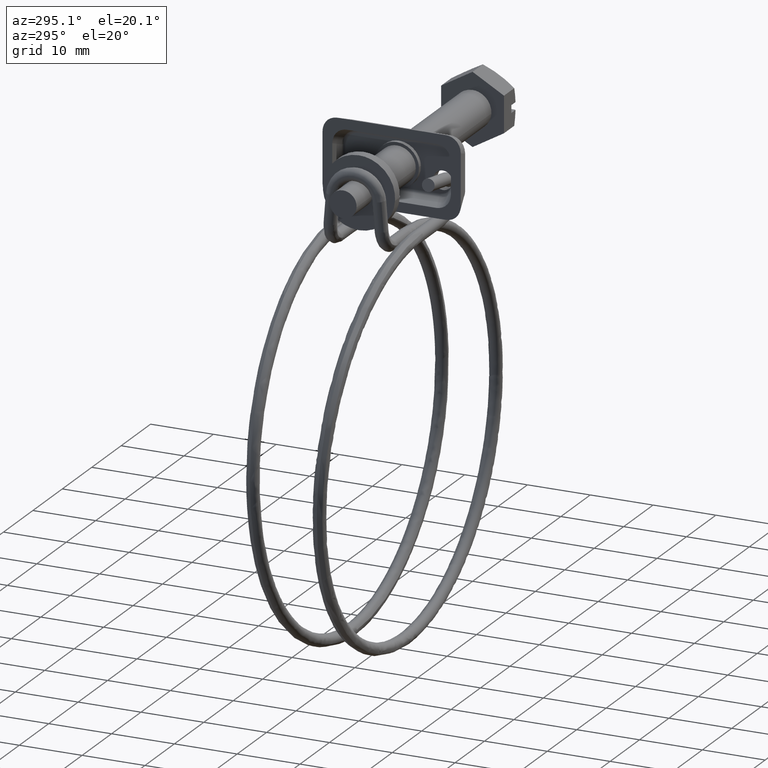
[diagram: clean part render]
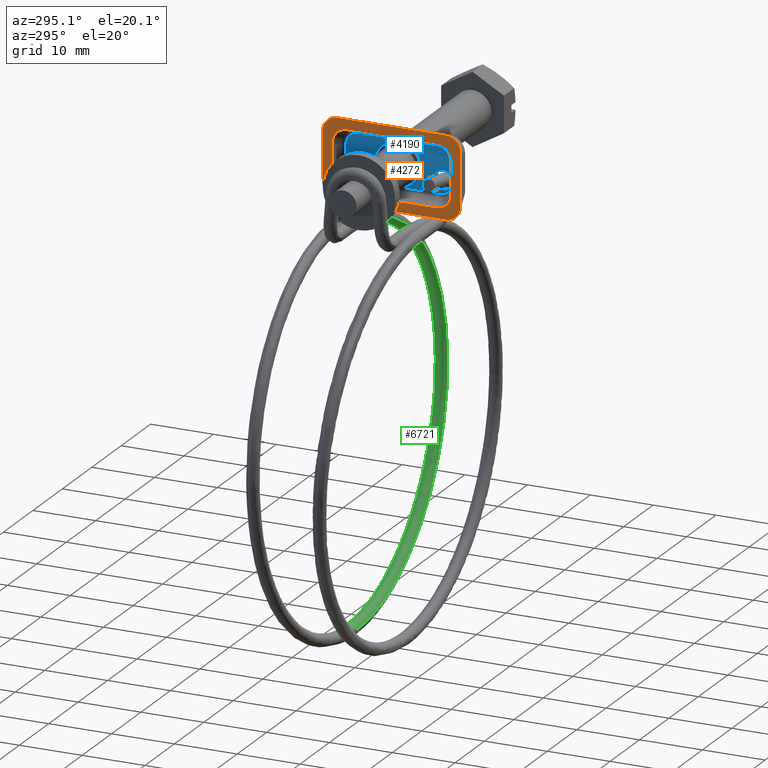
[diagram: same view with three faces highlighted in distinct colors, each labeled with its STEP entity id]
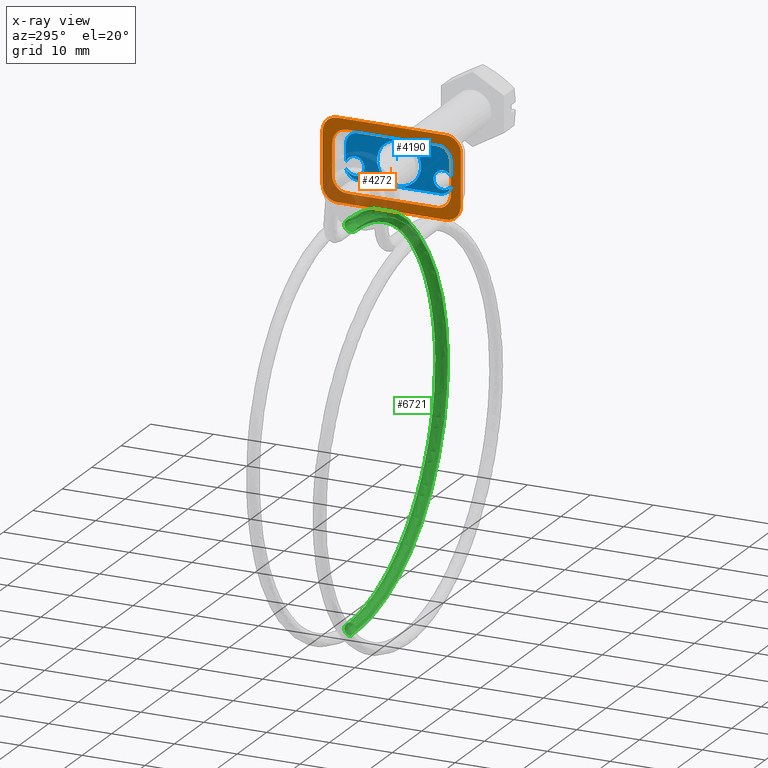
[diagram: x-ray of the same camera — body ghosted, the three highlighted faces saturated]
A machine part, auxiliary view with three faces highlighted in distinct colors.
The next image is the same camera in x-ray (body ghosted, the three faces saturated) — at least one of them is partly hidden behind the body in this view.
Their STEP definitions:

[orange] entity #4272 — the highlighted face is a freeform B-spline surface patch.
#3765=CARTESIAN_POINT('',(-38.700000000000003,-9.453835362344231,-2.455375465696455));
#3766=VERTEX_POINT('',#3765);
#3774=CARTESIAN_POINT('',(-38.700000000000003,-7.096346438622450,-4.897999379502131));
#3775=VERTEX_POINT('',#3774);
#3781=CARTESIAN_POINT('',(-38.700000000000003,-9.453835362344169,-2.455375465696495));
#3782=CARTESIAN_POINT('',(-38.699999999999996,-9.453835362344108,-4.897999379502226));
#3783=CARTESIAN_POINT('',(-38.700000000000003,-7.096346438622450,-4.897999379502131));
#3791=(BOUNDED_CURVE()B_SPLINE_CURVE(2,(#3781,#3782,#3783),.UNSPECIFIED.,.F.,.U.)CURVE()GEOMETRIC_REPRESENTATION_ITEM()QUASI_UNIFORM_CURVE()RATIONAL_B_SPLINE_CURVE((1.0,0.736600277350803,1.0))REPRESENTATION_ITEM(''));
#3792=EDGE_CURVE('',#3766,#3775,#3791,.T.);
#3811=CARTESIAN_POINT('',(-38.700000000000003,7.096346438622000,-4.897999379502131));
#3812=VERTEX_POINT('',#3811);
#3820=CARTESIAN_POINT('',(-38.700000000000003,9.453835362344339,-2.455375465696360));
#3821=VERTEX_POINT('',#3820);
#3827=CARTESIAN_POINT('',(-38.700000000000003,7.096346438622005,-4.897999379502140));
#3828=CARTESIAN_POINT('',(-38.699999999999989,9.453835362344405,-4.897999379502303));
#3829=CARTESIAN_POINT('',(-38.700000000000003,9.453835362344339,-2.455375465696360));
#3837=(BOUNDED_CURVE()B_SPLINE_CURVE(2,(#3827,#3828,#3829),.UNSPECIFIED.,.F.,.U.)CURVE()GEOMETRIC_REPRESENTATION_ITEM()QUASI_UNIFORM_CURVE()RATIONAL_B_SPLINE_CURVE((1.0,0.736600277350721,1.0))REPRESENTATION_ITEM(''));
#3838=EDGE_CURVE('',#3812,#3821,#3837,.T.);
#3857=CARTESIAN_POINT('',(-38.700000000000003,9.453835362344339,2.455374465696385));
#3858=VERTEX_POINT('',#3857);
#3865=CARTESIAN_POINT('',(-38.700000000000003,7.096346438622230,4.897998379502161));
#3866=VERTEX_POINT('',#3865);
#3872=CARTESIAN_POINT('',(-38.700000000000003,9.453835362344339,2.455374465696385));
#3873=CARTESIAN_POINT('',(-38.699999999999989,9.453835362344014,4.897998379502210));
#3874=CARTESIAN_POINT('',(-38.700000000000003,7.096346438622204,4.897998379502179));
#3882=(BOUNDED_CURVE()B_SPLINE_CURVE(2,(#3872,#3873,#3874),.UNSPECIFIED.,.F.,.U.)CURVE()GEOMETRIC_REPRESENTATION_ITEM()QUASI_UNIFORM_CURVE()RATIONAL_B_SPLINE_CURVE((1.0,0.736600277350804,1.0))REPRESENTATION_ITEM(''));
#3883=EDGE_CURVE('',#3858,#3866,#3882,.T.);
#3902=CARTESIAN_POINT('',(-38.700000000000003,-7.096346438622230,4.897998379502161));
#3903=VERTEX_POINT('',#3902);
#3910=CARTESIAN_POINT('',(-38.700000000000003,-9.453835362344231,2.455374465696380));
#3911=VERTEX_POINT('',#3910);
#3917=CARTESIAN_POINT('',(-38.700000000000003,-7.096346438622241,4.897998379502179));
#3918=CARTESIAN_POINT('',(-38.700000000000003,-9.453835362344249,4.897998379502205));
#3919=CARTESIAN_POINT('',(-38.700000000000003,-9.453835362344169,2.455374465696290));
#3927=(BOUNDED_CURVE()B_SPLINE_CURVE(2,(#3917,#3918,#3919),.UNSPECIFIED.,.F.,.U.)CURVE()GEOMETRIC_REPRESENTATION_ITEM()QUASI_UNIFORM_CURVE()RATIONAL_B_SPLINE_CURVE((1.0,0.736600277350776,1.0))REPRESENTATION_ITEM(''));
#3928=EDGE_CURVE('',#3903,#3911,#3927,.T.);
#3947=CARTESIAN_POINT('',(-38.700000000000003,-11.0,4.057375086194185));
#3948=VERTEX_POINT('',#3947);
#3955=CARTESIAN_POINT('',(-38.700000000000003,-8.642511158470031,6.500000000000110));
#3956=VERTEX_POINT('',#3955);
#3962=CARTESIAN_POINT('',(-38.700000000000003,-11.0,4.057375086194185));
#3963=CARTESIAN_POINT('',(-38.700000000000003,-10.999999223404537,6.499998007051939));
#3964=CARTESIAN_POINT('',(-38.700000000000003,-8.642511158470031,6.500000000000110));
#3972=(BOUNDED_CURVE()B_SPLINE_CURVE(2,(#3962,#3963,#3964),.UNSPECIFIED.,.F.,.U.)CURVE()GEOMETRIC_REPRESENTATION_ITEM()QUASI_UNIFORM_CURVE()RATIONAL_B_SPLINE_CURVE((1.0,0.736600485733960,1.0))REPRESENTATION_ITEM(''));
#3973=EDGE_CURVE('',#3948,#3956,#3972,.T.);
#3992=CARTESIAN_POINT('',(-38.700000000000003,-8.642511076278339,-6.500000000000000));
#3993=VERTEX_POINT('',#3992);
#4000=CARTESIAN_POINT('',(-38.700000000000003,-11.0,-4.057376086194156));
#4001=VERTEX_POINT('',#4000);
#4007=CARTESIAN_POINT('',(-38.700000000000003,-8.642511076278327,-6.499999999999980));
#4008=CARTESIAN_POINT('',(-38.699999999999996,-10.999999999999945,-6.499999999999979));
#4009=CARTESIAN_POINT('',(-38.700000000000003,-11.0,-4.057376086194156));
#4017=(BOUNDED_CURVE()B_SPLINE_CURVE(2,(#4007,#4008,#4009),.UNSPECIFIED.,.F.,.U.)CURVE()GEOMETRIC_REPRESENTATION_ITEM()QUASI_UNIFORM_CURVE()RATIONAL_B_SPLINE_CURVE((1.0,0.736600277350831,1.0))REPRESENTATION_ITEM(''));
#4018=EDGE_CURVE('',#3993,#4001,#4017,.T.);
#4037=CARTESIAN_POINT('',(-38.700000000000003,11.000000000000121,-4.057376086194106));
#4038=VERTEX_POINT('',#4037);
#4045=CARTESIAN_POINT('',(-38.700000000000003,8.642511076278229,-6.500000000000000));
#4046=VERTEX_POINT('',#4045);
#4052=CARTESIAN_POINT('',(-38.700000000000003,11.000000000000121,-4.057376086194105));
#4053=CARTESIAN_POINT('',(-38.699999999999996,11.000000000000103,-6.499999999999749));
#4054=CARTESIAN_POINT('',(-38.700000000000003,8.642511076278229,-6.500000000000000));
#4062=(BOUNDED_CURVE()B_SPLINE_CURVE(2,(#4052,#4053,#4054),.UNSPECIFIED.,.F.,.U.)CURVE()GEOMETRIC_REPRESENTATION_ITEM()QUASI_UNIFORM_CURVE()RATIONAL_B_SPLINE_CURVE((1.0,0.736600277350816,1.0))REPRESENTATION_ITEM(''));
#4063=EDGE_CURVE('',#4038,#4046,#4062,.T.);
#4082=CARTESIAN_POINT('',(-38.700000000000003,8.642511158470031,6.500000000000110));
#4083=VERTEX_POINT('',#4082);
#4090=CARTESIAN_POINT('',(-38.700000000000003,11.000000000000121,4.057375086194250));
#4091=VERTEX_POINT('',#4090);
#4097=CARTESIAN_POINT('',(-38.700000000000003,8.642511158470031,6.500000000000110));
#4098=CARTESIAN_POINT('',(-38.699999999999996,11.000000345154032,6.500000075788750));
#4099=CARTESIAN_POINT('',(-38.700000000000003,11.000000000000121,4.057375086194250));
#4107=(BOUNDED_CURVE()B_SPLINE_CURVE(2,(#4097,#4098,#4099),.UNSPECIFIED.,.F.,.U.)CURVE()GEOMETRIC_REPRESENTATION_ITEM()QUASI_UNIFORM_CURVE()RATIONAL_B_SPLINE_CURVE((1.0,0.736600200372209,1.0))REPRESENTATION_ITEM(''));
#4108=EDGE_CURVE('',#4083,#4091,#4107,.T.);
#4122=CARTESIAN_POINT('',(-38.700000000000003,9.453835362344339,-2.455375465696360));
#4123=CARTESIAN_POINT('',(-38.700000000000003,9.453835362344339,2.455374465696385));
#4124=QUASI_UNIFORM_CURVE('',1,(#4122,#4123),.UNSPECIFIED.,.F.,.U.);
#4125=EDGE_CURVE('',#3821,#3858,#4124,.T.);
#4139=CARTESIAN_POINT('',(-38.700000000000003,-9.453835362344231,-2.455375465696455));
#4140=CARTESIAN_POINT('',(-38.700000000000003,-9.453835362344231,2.455374465696380));
#4141=QUASI_UNIFORM_CURVE('',1,(#4139,#4140),.UNSPECIFIED.,.F.,.U.);
#4142=EDGE_CURVE('',#3766,#3911,#4141,.T.);
#4155=CARTESIAN_POINT('',(-38.700000000000003,-7.096346438622450,-4.897999379502131));
#4156=CARTESIAN_POINT('',(-38.700000000000003,7.096346438622000,-4.897999379502131));
#4157=QUASI_UNIFORM_CURVE('',1,(#4155,#4156),.UNSPECIFIED.,.F.,.U.);
#4158=EDGE_CURVE('',#3775,#3812,#4157,.T.);
#4199=CARTESIAN_POINT('',(-38.700000000000003,-7.096346438622230,4.897998379502161));
#4200=CARTESIAN_POINT('',(-38.700000000000003,7.096346438622230,4.897998379502161));
#4201=QUASI_UNIFORM_CURVE('',1,(#4199,#4200),.UNSPECIFIED.,.F.,.U.);
#4202=EDGE_CURVE('',#3903,#3866,#4201,.T.);
#4215=CARTESIAN_POINT('',(-38.700000000000003,11.000000000000121,-4.057376086194106));
#4216=CARTESIAN_POINT('',(-38.700000000000003,11.000000000000121,4.057375086194250));
#4217=QUASI_UNIFORM_CURVE('',1,(#4215,#4216),.UNSPECIFIED.,.F.,.U.);
#4218=EDGE_CURVE('',#4038,#4091,#4217,.T.);
#4231=CARTESIAN_POINT('',(-38.700000000000003,-11.0,-4.057376086194156));
#4232=CARTESIAN_POINT('',(-38.700000000000003,-11.0,4.057375086194185));
#4233=QUASI_UNIFORM_CURVE('',1,(#4231,#4232),.UNSPECIFIED.,.F.,.U.);
#4234=EDGE_CURVE('',#4001,#3948,#4233,.T.);
#4239=CARTESIAN_POINT('',(-38.700000000000003,-12.098899957359739,-7.149349974803484));
#4240=CARTESIAN_POINT('',(-38.700000000000003,-12.098899957359739,7.149350323490763));
#4241=CARTESIAN_POINT('',(-38.700000000000003,12.098900547445840,-7.149349974803484));
#4242=CARTESIAN_POINT('',(-38.700000000000003,12.098900547445840,7.149350323490763));
#4243=B_SPLINE_SURFACE_WITH_KNOTS('',1,1,((#4239,#4241),(#4240,#4242)),.UNSPECIFIED.,.F.,.F.,.U.,(2,2),(2,2),(0.0,14.298700298294250),(0.0,24.197800504805581),.UNSPECIFIED.);
#4244=CARTESIAN_POINT('',(-38.700000000000003,-8.642511158470031,6.500000000000110));
#4245=CARTESIAN_POINT('',(-38.700000000000003,8.642511158470031,6.500000000000110));
#4246=QUASI_UNIFORM_CURVE('',1,(#4244,#4245),.UNSPECIFIED.,.F.,.U.);
#4247=EDGE_CURVE('',#3956,#4083,#4246,.T.);
#4248=ORIENTED_EDGE('',*,*,#4247,.T.);
#4249=ORIENTED_EDGE('',*,*,#4108,.T.);
#4250=ORIENTED_EDGE('',*,*,#4218,.F.);
#4251=ORIENTED_EDGE('',*,*,#4063,.T.);
#4252=CARTESIAN_POINT('',(-38.700000000000003,-8.642511076278339,-6.500000000000000));
#4253=CARTESIAN_POINT('',(-38.700000000000003,8.642511076278229,-6.500000000000000));
#4254=QUASI_UNIFORM_CURVE('',1,(#4252,#4253),.UNSPECIFIED.,.F.,.U.);
#4255=EDGE_CURVE('',#3993,#4046,#4254,.T.);
#4256=ORIENTED_EDGE('',*,*,#4255,.F.);
#4257=ORIENTED_EDGE('',*,*,#4018,.T.);
#4258=ORIENTED_EDGE('',*,*,#4234,.T.);
#4259=ORIENTED_EDGE('',*,*,#3973,.T.);
#4260=EDGE_LOOP('',(#4248,#4249,#4250,#4251,#4256,#4257,#4258,#4259));
#4261=FACE_OUTER_BOUND('',#4260,.T.);
#4262=ORIENTED_EDGE('',*,*,#4142,.F.);
#4263=ORIENTED_EDGE('',*,*,#3792,.T.);
#4264=ORIENTED_EDGE('',*,*,#4158,.T.);
#4265=ORIENTED_EDGE('',*,*,#3838,.T.);
#4266=ORIENTED_EDGE('',*,*,#4125,.T.);
#4267=ORIENTED_EDGE('',*,*,#3883,.T.);
#4268=ORIENTED_EDGE('',*,*,#4202,.F.);
#4269=ORIENTED_EDGE('',*,*,#3928,.T.);
#4270=EDGE_LOOP('',(#4262,#4263,#4264,#4265,#4266,#4267,#4268,#4269));
#4271=FACE_BOUND('',#4270,.T.);
#4272=ADVANCED_FACE('',(#4261,#4271),#4243,.T.);

[blue] entity #4190 — the highlighted face is a freeform B-spline surface patch.
#1883=CARTESIAN_POINT('',(-36.200000000000003,-5.728324125054815,-0.704487291690259));
#1884=VERTEX_POINT('',#1883);
#1885=CARTESIAN_POINT('',(-36.200000000000003,-8.438446995591788,-1.074711579191980));
#1886=VERTEX_POINT('',#1885);
#1887=CARTESIAN_POINT('',(-36.200000000000003,-5.728324125054815,-0.704487291690259));
#1888=CARTESIAN_POINT('',(-36.200000000000003,-6.104555623824321,-0.103058156269385));
#1889=CARTESIAN_POINT('',(-36.200000000000003,-6.808142015089159,-0.012320426427032));
#1890=CARTESIAN_POINT('',(-36.200000000000010,-8.075999828347010,0.151188335490741));
#1891=CARTESIAN_POINT('',(-36.200000000000003,-8.438446995591784,-1.074711579191981));
#1899=(BOUNDED_CURVE()B_SPLINE_CURVE(2,(#1887,#1888,#1889,#1890,#1891),.UNSPECIFIED.,.F.,.U.)B_SPLINE_CURVE_WITH_KNOTS((3,2,3),(0.594758611922672,0.750000000000000,1.0),.UNSPECIFIED.)CURVE()GEOMETRIC_REPRESENTATION_ITEM()RATIONAL_B_SPLINE_CURVE((0.887540518945661,0.851650052205662,1.0,0.761097942965372,1.0))REPRESENTATION_ITEM(''));
#1900=EDGE_CURVE('',#1884,#1886,#1899,.T.);
#1956=CARTESIAN_POINT('',(-36.200000000000003,-5.502797802385093,-1.591572809592920));
#1957=VERTEX_POINT('',#1956);
#1963=CARTESIAN_POINT('',(-36.200000000000003,-8.409378136258292,-2.013471780176190));
#1964=VERTEX_POINT('',#1963);
#1965=CARTESIAN_POINT('',(-36.200000000000003,-8.409378136258290,-2.013471780176189));
#1966=CARTESIAN_POINT('',(-36.200000000000010,-7.971777714804319,-3.214598093686211));
#1967=CARTESIAN_POINT('',(-36.200000000000003,-6.716465370576391,-2.972958965456003));
#1968=CARTESIAN_POINT('',(-36.200000000000010,-5.573834358664778,-2.753010230882745));
#1969=CARTESIAN_POINT('',(-36.200000000000003,-5.502797802385093,-1.591572809592920));
#1977=(BOUNDED_CURVE()B_SPLINE_CURVE(2,(#1965,#1966,#1967,#1968,#1969),.UNSPECIFIED.,.F.,.U.)B_SPLINE_CURVE_WITH_KNOTS((3,2,3),(0.0,0.250000000000000,0.482545984428038),.UNSPECIFIED.)CURVE()GEOMETRIC_REPRESENTATION_ITEM()RATIONAL_B_SPLINE_CURVE((1.0,0.761097942965372,1.0,0.777777143859997,0.968970550467892))REPRESENTATION_ITEM(''));
#1978=EDGE_CURVE('',#1964,#1957,#1977,.T.);
#2025=CARTESIAN_POINT('',(-36.200000000000017,-5.502797802385094,-1.591572809592920));
#2026=CARTESIAN_POINT('',(-36.200000000000010,-5.498580561936741,-1.522621538193900));
#2027=CARTESIAN_POINT('',(-36.200000000000003,-5.500718614089884,-1.453574512785301));
#2028=CARTESIAN_POINT('',(-36.200000000000010,-5.513269056385455,-1.048266014207397));
#2029=CARTESIAN_POINT('',(-36.200000000000010,-5.728324125054815,-0.704487291690258));
#2037=(BOUNDED_CURVE()B_SPLINE_CURVE(2,(#2025,#2026,#2027,#2028,#2029),.UNSPECIFIED.,.F.,.U.)B_SPLINE_CURVE_WITH_KNOTS((3,2,3),(0.482545984428038,0.500000000000000,0.594758611922673),.UNSPECIFIED.)CURVE()GEOMETRIC_REPRESENTATION_ITEM()RATIONAL_B_SPLINE_CURVE((0.968970550467892,0.983320799105376,1.0,0.909447890759710,0.887540518945661))REPRESENTATION_ITEM(''));
#2038=EDGE_CURVE('',#1957,#1884,#2037,.T.);
#2086=CARTESIAN_POINT('',(-36.200000000000003,5.910109958172886,-2.530601618825735));
#2087=VERTEX_POINT('',#2086);
#2088=CARTESIAN_POINT('',(-36.200000000000003,8.409378136258361,-2.013471780175256));
#2089=VERTEX_POINT('',#2088);
#2090=CARTESIAN_POINT('',(-36.200000000000003,5.910109958172886,-2.530601618825735));
#2091=CARTESIAN_POINT('',(-36.200000000000003,6.242049675784870,-2.881637155840248));
#2092=CARTESIAN_POINT('',(-36.200000000000003,6.716465370576574,-2.972958965456092));
#2093=CARTESIAN_POINT('',(-36.200000000000010,7.971777714805023,-3.214598093685992));
#2094=CARTESIAN_POINT('',(-36.200000000000003,8.409378136258351,-2.013471780175252));
#2102=(BOUNDED_CURVE()B_SPLINE_CURVE(2,(#2090,#2091,#2092,#2093,#2094),.UNSPECIFIED.,.F.,.U.)B_SPLINE_CURVE_WITH_KNOTS((3,2,3),(0.639026038671926,0.750000000000000,1.0),.UNSPECIFIED.)CURVE()GEOMETRIC_REPRESENTATION_ITEM()RATIONAL_B_SPLINE_CURVE((0.882052944107953,0.893952369445717,1.0,0.761097942965258,1.0))REPRESENTATION_ITEM(''));
#2103=EDGE_CURVE('',#2087,#2089,#2102,.T.);
#2159=CARTESIAN_POINT('',(-36.200000000000003,5.502797802372852,-1.408427190602418));
#2160=VERTEX_POINT('',#2159);
#2166=CARTESIAN_POINT('',(-36.200000000000003,8.438446995591820,-1.074711579193044));
#2167=VERTEX_POINT('',#2166);
#2168=CARTESIAN_POINT('',(-36.200000000000003,8.438446995591820,-1.074711579193044));
#2169=CARTESIAN_POINT('',(-36.200000000000010,8.075999828347822,0.151188335490383));
#2170=CARTESIAN_POINT('',(-36.200000000000003,6.808142015089454,-0.012320426426957));
#2171=CARTESIAN_POINT('',(-36.200000000000003,5.578488070884625,-0.170902242069981));
#2172=CARTESIAN_POINT('',(-36.200000000000010,5.502797802372853,-1.408427190602418));
#2180=(BOUNDED_CURVE()B_SPLINE_CURVE(2,(#2168,#2169,#2170,#2171,#2172),.UNSPECIFIED.,.F.,.U.)B_SPLINE_CURVE_WITH_KNOTS((3,2,3),(0.0,0.250000000000000,0.494224959489201),.UNSPECIFIED.)CURVE()GEOMETRIC_REPRESENTATION_ITEM()RATIONAL_B_SPLINE_CURVE((1.0,0.761097942965258,1.0,0.766616619195214,0.989217612170441))REPRESENTATION_ITEM(''));
#2181=EDGE_CURVE('',#2167,#2160,#2180,.T.);
#2228=CARTESIAN_POINT('',(-36.200000000000003,5.502797802372852,-1.408427190602418));
#2229=CARTESIAN_POINT('',(-36.200000000000010,5.501418096124052,-1.430985188322690));
#2230=CARTESIAN_POINT('',(-36.200000000000003,5.500718614089606,-1.453574512785245));
#2231=CARTESIAN_POINT('',(-36.200000000000003,5.481406834419241,-2.077236072969079));
#2232=CARTESIAN_POINT('',(-36.200000000000003,5.910109958172886,-2.530601618825735));
#2240=(BOUNDED_CURVE()B_SPLINE_CURVE(2,(#2228,#2229,#2230,#2231,#2232),.UNSPECIFIED.,.F.,.U.)B_SPLINE_CURVE_WITH_KNOTS((3,2,3),(0.494224959489201,0.500000000000000,0.639026038671925),.UNSPECIFIED.)CURVE()GEOMETRIC_REPRESENTATION_ITEM()RATIONAL_B_SPLINE_CURVE((0.989217612170441,0.994481323770045,1.0,0.867145573519543,0.882052944107953))REPRESENTATION_ITEM(''));
#2241=EDGE_CURVE('',#2160,#2087,#2240,.T.);
#2319=CARTESIAN_POINT('',(-36.200000000000003,-3.493471794465061,0.213669888559573));
#2320=VERTEX_POINT('',#2319);
#2326=CARTESIAN_POINT('',(-36.200000000000003,0.0,3.500000000000000));
#2327=VERTEX_POINT('',#2326);
#2328=CARTESIAN_POINT('',(-36.200000000000003,0.0,3.500000000000000));
#2329=CARTESIAN_POINT('',(-36.200000000000003,-3.292471233815716,3.500000000000000));
#2330=CARTESIAN_POINT('',(-36.200000000000003,-3.493471794465061,0.213669888559573));
#2338=(BOUNDED_CURVE()B_SPLINE_CURVE(2,(#2328,#2329,#2330),.UNSPECIFIED.,.F.,.U.)B_SPLINE_CURVE_WITH_KNOTS((3,3),(0.500000000000000,0.739332962223440),.UNSPECIFIED.)CURVE()GEOMETRIC_REPRESENTATION_ITEM()RATIONAL_B_SPLINE_CURVE((1.0,0.719603993304873,0.976072041633491))REPRESENTATION_ITEM(''));
#2339=EDGE_CURVE('',#2327,#2320,#2338,.T.);
#2341=CARTESIAN_POINT('',(-36.200000000000003,3.475533342268366,-0.413119821336227));
#2342=VERTEX_POINT('',#2341);
#2343=CARTESIAN_POINT('',(-36.200000000000003,3.475533342268367,-0.413119821336228));
#2344=CARTESIAN_POINT('',(-36.200000000000003,3.500000000000000,-0.207284418819656));
#2345=CARTESIAN_POINT('',(-36.200000000000003,3.500000000000000,0.0));
#2346=CARTESIAN_POINT('',(-36.200000000000003,3.500000000000000,3.500000000000000));
#2347=CARTESIAN_POINT('',(-36.200000000000003,0.0,3.500000000000000));
#2355=(BOUNDED_CURVE()B_SPLINE_CURVE(2,(#2343,#2344,#2345,#2346,#2347),.UNSPECIFIED.,.F.,.U.)B_SPLINE_CURVE_WITH_KNOTS((3,2,3),(0.229562473511990,0.250000000000000,0.500000000000000),.UNSPECIFIED.)CURVE()GEOMETRIC_REPRESENTATION_ITEM()RATIONAL_B_SPLINE_CURVE((0.956026754180723,0.976055948329366,1.0,0.707106781186547,1.0))REPRESENTATION_ITEM(''));
#2356=EDGE_CURVE('',#2342,#2327,#2355,.T.);
#2400=CARTESIAN_POINT('',(-36.200000000000003,0.0,-3.500000000000000));
#2401=VERTEX_POINT('',#2400);
#2402=CARTESIAN_POINT('',(-36.200000000000003,0.0,-3.500000000000000));
#2403=CARTESIAN_POINT('',(-36.199999999999996,3.108610840762099,-3.500000000000000));
#2404=CARTESIAN_POINT('',(-36.200000000000003,3.475533342268367,-0.413119821336228));
#2412=(BOUNDED_CURVE()B_SPLINE_CURVE(2,(#2402,#2403,#2404),.UNSPECIFIED.,.F.,.U.)B_SPLINE_CURVE_WITH_KNOTS((3,3),(0.0,0.229562473511990),.UNSPECIFIED.)CURVE()GEOMETRIC_REPRESENTATION_ITEM()RATIONAL_B_SPLINE_CURVE((1.0,0.731050832857181,0.956026754180723))REPRESENTATION_ITEM(''));
#2413=EDGE_CURVE('',#2401,#2342,#2412,.T.);
#2415=CARTESIAN_POINT('',(-36.200000000000003,-3.493471794465061,0.213669888559573));
#2416=CARTESIAN_POINT('',(-36.200000000000003,-3.500000000000000,0.106934671733160));
#2417=CARTESIAN_POINT('',(-36.200000000000003,-3.500000000000000,0.0));
#2418=CARTESIAN_POINT('',(-36.200000000000003,-3.500000000000000,-3.500000000000000));
#2419=CARTESIAN_POINT('',(-36.200000000000003,0.0,-3.500000000000000));
#2427=(BOUNDED_CURVE()B_SPLINE_CURVE(2,(#2415,#2416,#2417,#2418,#2419),.UNSPECIFIED.,.F.,.U.)B_SPLINE_CURVE_WITH_KNOTS((3,2,3),(0.739332962223439,0.750000000000000,1.0),.UNSPECIFIED.)CURVE()GEOMETRIC_REPRESENTATION_ITEM()RATIONAL_B_SPLINE_CURVE((0.976072041633491,0.987502787881674,1.0,0.707106781186547,1.0))REPRESENTATION_ITEM(''));
#2428=EDGE_CURVE('',#2320,#2401,#2427,.T.);
#2487=CARTESIAN_POINT('',(-36.200000000000003,-6.552455856614260,-3.613999483098555));
#2488=VERTEX_POINT('',#2487);
#2532=CARTESIAN_POINT('',(-36.200000000000003,-6.552455856614260,-3.613999483098555));
#2533=CARTESIAN_POINT('',(-36.199999999999996,-8.142356781997027,-3.613999483098620));
#2534=CARTESIAN_POINT('',(-36.200000000000003,-8.409378136258329,-2.013471780176166));
#2542=(BOUNDED_CURVE()B_SPLINE_CURVE(2,(#2532,#2533,#2534),.UNSPECIFIED.,.F.,.U.)CURVE()GEOMETRIC_REPRESENTATION_ITEM()QUASI_UNIFORM_CURVE()RATIONAL_B_SPLINE_CURVE((1.0,0.790787445489052,1.0))REPRESENTATION_ITEM(''));
#2543=EDGE_CURVE('',#2488,#1964,#2542,.T.);
#2637=CARTESIAN_POINT('',(-36.200000000000003,6.552455856614290,-3.613999483098555));
#2638=VERTEX_POINT('',#2637);
#2660=CARTESIAN_POINT('',(-36.200000000000003,6.552455856614290,-3.613999483098555));
#2661=CARTESIAN_POINT('',(-36.200000000000003,-6.552455856614260,-3.613999483098555));
#2662=QUASI_UNIFORM_CURVE('',1,(#2660,#2661),.UNSPECIFIED.,.F.,.U.);
#2663=EDGE_CURVE('',#2638,#2488,#2662,.T.);
#2784=CARTESIAN_POINT('',(-36.200000000000003,8.409378136258361,-2.013471780175256));
#2785=CARTESIAN_POINT('',(-36.199999999999996,8.142356781997565,-3.613999483098475));
#2786=CARTESIAN_POINT('',(-36.200000000000003,6.552455856614280,-3.613999483098562));
#2794=(BOUNDED_CURVE()B_SPLINE_CURVE(2,(#2784,#2785,#2786),.UNSPECIFIED.,.F.,.U.)CURVE()GEOMETRIC_REPRESENTATION_ITEM()QUASI_UNIFORM_CURVE()RATIONAL_B_SPLINE_CURVE((1.0,0.790787445488940,1.0))REPRESENTATION_ITEM(''));
#2795=EDGE_CURVE('',#2089,#2638,#2794,.T.);
#2816=CARTESIAN_POINT('',(-36.200000000000003,-8.438446995591788,1.659899352054025));
#2817=VERTEX_POINT('',#2816);
#2831=CARTESIAN_POINT('',(-36.200000000000003,-8.438446995591788,-1.074711579191980));
#2832=CARTESIAN_POINT('',(-36.200000000000003,-8.438446995591788,1.659899352054025));
#2833=QUASI_UNIFORM_CURVE('',1,(#2831,#2832),.UNSPECIFIED.,.F.,.U.);
#2834=EDGE_CURVE('',#1886,#2817,#2833,.T.);
#2960=CARTESIAN_POINT('',(-36.200000000000003,-6.552455856614260,3.613998483098680));
#2961=VERTEX_POINT('',#2960);
#2975=CARTESIAN_POINT('',(-36.200000000000003,-8.438446995591779,1.659899352054033));
#2976=CARTESIAN_POINT('',(-36.199999999999996,-8.438446995591772,3.613998483098672));
#2977=CARTESIAN_POINT('',(-36.200000000000003,-6.552455856614251,3.613998483098665));
#2985=(BOUNDED_CURVE()B_SPLINE_CURVE(2,(#2975,#2976,#2977),.UNSPECIFIED.,.F.,.U.)CURVE()GEOMETRIC_REPRESENTATION_ITEM()QUASI_UNIFORM_CURVE()RATIONAL_B_SPLINE_CURVE((1.0,0.736600277350791,1.0))REPRESENTATION_ITEM(''));
#2986=EDGE_CURVE('',#2817,#2961,#2985,.T.);
#3070=CARTESIAN_POINT('',(-36.200000000000003,6.552455856614140,3.613998483098650));
#3071=VERTEX_POINT('',#3070);
#3085=CARTESIAN_POINT('',(-36.200000000000003,-6.552455856614260,3.613998483098680));
#3086=CARTESIAN_POINT('',(-36.200000000000003,6.552455856614140,3.613998483098650));
#3087=QUASI_UNIFORM_CURVE('',1,(#3085,#3086),.UNSPECIFIED.,.F.,.U.);
#3088=EDGE_CURVE('',#2961,#3071,#3087,.T.);
#3113=CARTESIAN_POINT('',(-36.200000000000003,8.438446995591759,1.659899352054280));
#3114=VERTEX_POINT('',#3113);
#3136=CARTESIAN_POINT('',(-36.200000000000003,8.438446995591759,1.659899352054280));
#3137=CARTESIAN_POINT('',(-36.200000000000003,8.438446995591820,-1.074711579193044));
#3138=QUASI_UNIFORM_CURVE('',1,(#3136,#3137),.UNSPECIFIED.,.F.,.U.);
#3139=EDGE_CURVE('',#3114,#2167,#3138,.T.);
#3197=CARTESIAN_POINT('',(-36.200000000000003,6.552455856614149,3.613998483098665));
#3198=CARTESIAN_POINT('',(-36.200000000000010,8.438446995591537,3.613998483098739));
#3199=CARTESIAN_POINT('',(-36.200000000000003,8.438446995591747,1.659899352054262));
#3207=(BOUNDED_CURVE()B_SPLINE_CURVE(2,(#3197,#3198,#3199),.UNSPECIFIED.,.F.,.U.)CURVE()GEOMETRIC_REPRESENTATION_ITEM()QUASI_UNIFORM_CURVE()RATIONAL_B_SPLINE_CURVE((1.0,0.736600277350815,1.0))REPRESENTATION_ITEM(''));
#3208=EDGE_CURVE('',#3071,#3114,#3207,.T.);
#4163=CARTESIAN_POINT('',(-36.200000000000003,-9.281447817740716,3.975036873826210));
#4164=CARTESIAN_POINT('',(-36.200000000000003,-9.281447817740716,-3.975037615332734));
#4165=CARTESIAN_POINT('',(-36.200000000000003,9.281448270414316,3.975036873826210));
#4166=CARTESIAN_POINT('',(-36.200000000000003,9.281448270414316,-3.975037615332734));
#4167=B_SPLINE_SURFACE_WITH_KNOTS('',1,1,((#4163,#4165),(#4164,#4166)),.UNSPECIFIED.,.F.,.F.,.U.,(2,2),(2,2),(0.0,7.950074489158943),(0.0,18.562896088155028),.UNSPECIFIED.);
#4168=ORIENTED_EDGE('',*,*,#2663,.T.);
#4169=ORIENTED_EDGE('',*,*,#2543,.T.);
#4170=ORIENTED_EDGE('',*,*,#1978,.T.);
#4171=ORIENTED_EDGE('',*,*,#2038,.T.);
#4172=ORIENTED_EDGE('',*,*,#1900,.T.);
#4173=ORIENTED_EDGE('',*,*,#2834,.T.);
#4174=ORIENTED_EDGE('',*,*,#2986,.T.);
#4175=ORIENTED_EDGE('',*,*,#3088,.T.);
#4176=ORIENTED_EDGE('',*,*,#3208,.T.);
#4177=ORIENTED_EDGE('',*,*,#3139,.T.);
#4178=ORIENTED_EDGE('',*,*,#2181,.T.);
#4179=ORIENTED_EDGE('',*,*,#2241,.T.);
#4180=ORIENTED_EDGE('',*,*,#2103,.T.);
#4181=ORIENTED_EDGE('',*,*,#2795,.T.);
#4182=EDGE_LOOP('',(#4168,#4169,#4170,#4171,#4172,#4173,#4174,#4175,#4176,#4177,#4178,#4179,#4180,#4181));
#4183=FACE_OUTER_BOUND('',#4182,.T.);
#4184=ORIENTED_EDGE('',*,*,#2339,.T.);
#4185=ORIENTED_EDGE('',*,*,#2428,.T.);
#4186=ORIENTED_EDGE('',*,*,#2413,.T.);
#4187=ORIENTED_EDGE('',*,*,#2356,.T.);
#4188=EDGE_LOOP('',(#4184,#4185,#4186,#4187));
#4189=FACE_BOUND('',#4188,.T.);
#4190=ADVANCED_FACE('',(#4183,#4189),#4167,.F.);

[green] entity #6721 — the highlighted face is a freeform B-spline surface patch.
#5510=CARTESIAN_POINT('',(-32.250015575042518,4.949450048326650,-7.089595034402070));
#5511=VERTEX_POINT('',#5510);
#5517=CARTESIAN_POINT('',(-32.249995918368569,4.300002000000000,-8.850001000000392));
#5518=VERTEX_POINT('',#5517);
#5519=CARTESIAN_POINT('',(-32.250015575042518,4.949450048326650,-7.089595034402070));
#5520=CARTESIAN_POINT('',(-32.250012231949263,5.300001999999241,-7.388994685578228));
#5521=CARTESIAN_POINT('',(-32.250007084357740,5.300001999999481,-7.850001000006845));
#5522=CARTESIAN_POINT('',(-32.249995918368576,5.300002000000001,-8.850001000000392));
#5523=CARTESIAN_POINT('',(-32.249995918368569,4.300002000000000,-8.850001000000392));
#5531=(BOUNDED_CURVE()B_SPLINE_CURVE(2,(#5519,#5520,#5521,#5522,#5523),.UNSPECIFIED.,.F.,.U.)B_SPLINE_CURVE_WITH_KNOTS((3,2,3),(0.113143161348309,0.250000000000000,0.500000000000000),.UNSPECIFIED.)CURVE()GEOMETRIC_REPRESENTATION_ITEM()RATIONAL_B_SPLINE_CURVE((0.854871031639391,0.839662240042692,1.0,0.707106781186548,1.0))REPRESENTATION_ITEM(''));
#5532=EDGE_CURVE('',#5511,#5518,#5531,.T.);
#5534=CARTESIAN_POINT('',(-32.249995797983253,3.306690361283858,-7.965465229929489));
#5535=VERTEX_POINT('',#5534);
#5536=CARTESIAN_POINT('',(-32.249995918368569,4.300002000000000,-8.850001000000392));
#5537=CARTESIAN_POINT('',(-32.249995918368562,3.409510300259732,-8.850001000000392));
#5538=CARTESIAN_POINT('',(-32.249995797983246,3.306690361283858,-7.965465229929489));
#5546=(BOUNDED_CURVE()B_SPLINE_CURVE(2,(#5536,#5537,#5538),.UNSPECIFIED.,.F.,.U.)B_SPLINE_CURVE_WITH_KNOTS((3,3),(0.500000000000000,0.729999999794959),.UNSPECIFIED.)CURVE()GEOMETRIC_REPRESENTATION_ITEM()RATIONAL_B_SPLINE_CURVE((1.0,0.730538238931845,0.956886117787089))REPRESENTATION_ITEM(''));
#5547=EDGE_CURVE('',#5518,#5535,#5546,.T.);
#5664=CARTESIAN_POINT('',(-32.250018250346912,4.300001999998960,-6.850001000013299));
#5665=VERTEX_POINT('',#5664);
#5679=CARTESIAN_POINT('',(-32.250018250346912,4.300001999998960,-6.850001000013299));
#5680=CARTESIAN_POINT('',(-32.250018250346912,4.668921477104783,-6.850001000013299));
#5681=CARTESIAN_POINT('',(-32.250015575042525,4.949450048326650,-7.089595034402070));
#5689=(BOUNDED_CURVE()B_SPLINE_CURVE(2,(#5679,#5680,#5681),.UNSPECIFIED.,.F.,.U.)B_SPLINE_CURVE_WITH_KNOTS((3,3),(0.0,0.113143161348309),.UNSPECIFIED.)CURVE()GEOMETRIC_REPRESENTATION_ITEM()RATIONAL_B_SPLINE_CURVE((1.0,0.867444541143856,0.854871031639391))REPRESENTATION_ITEM(''));
#5690=EDGE_CURVE('',#5665,#5511,#5689,.T.);
#6606=CARTESIAN_POINT('',(-36.544026245290105,3.306690361212838,-69.434570448902520));
#6607=CARTESIAN_POINT('',(-1.141452763296385,3.306690361212838,-74.405037008403099));
#6608=CARTESIAN_POINT('',(-1.366073863621801,3.306690361212838,-38.655949015443504));
#6609=CARTESIAN_POINT('',(-1.588401523018653,3.306690361212839,-3.271868679569841));
#6610=CARTESIAN_POINT('',(-36.617571760073048,3.306690361212839,-8.275847427242159));
#6611=CARTESIAN_POINT('',(-36.421044962930189,3.409510299170977,-68.558625739580592));
#6612=CARTESIAN_POINT('',(-2.032404241694895,3.409510299170977,-73.386737707726510));
#6613=CARTESIAN_POINT('',(-2.250592174315898,3.409510299170977,-38.661506681033323));
#6614=CARTESIAN_POINT('',(-2.466552350354518,3.409510299170977,-4.290829460616721));
#6615=CARTESIAN_POINT('',(-36.492484127820731,3.409510299170977,-9.151493824972118));
#6616=CARTESIAN_POINT('',(-36.421044962930203,4.300001999997920,-68.558625739580592));
#6617=CARTESIAN_POINT('',(-2.032404241694894,4.300001999997921,-73.386737707726525));
#6618=CARTESIAN_POINT('',(-2.250592174315898,4.300001999997920,-38.661506681033323));
#6619=CARTESIAN_POINT('',(-2.466552350354518,4.300001999997921,-4.290829460616719));
#6620=CARTESIAN_POINT('',(-36.492484127820731,4.300001999997920,-9.151493824972114));
#6621=CARTESIAN_POINT('',(-36.421044962930189,5.300001999997919,-68.558625739580592));
#6622=CARTESIAN_POINT('',(-2.032404241694895,5.300001999997920,-73.386737707726525));
#6623=CARTESIAN_POINT('',(-2.250592174315898,5.300001999997919,-38.661506681033330));
#6624=CARTESIAN_POINT('',(-2.466552350354517,5.300001999997919,-4.290829460616720));
#6625=CARTESIAN_POINT('',(-36.492484127820731,5.300001999997919,-9.151493824972116));
#6626=CARTESIAN_POINT('',(-36.560079795027882,5.300001999997920,-69.548913230899942));
#6627=CARTESIAN_POINT('',(-1.025151049751393,5.300001999997920,-74.537962264650758));
#6628=CARTESIAN_POINT('',(-1.250611913459760,5.300001999997920,-38.655223537067769));
#6629=CARTESIAN_POINT('',(-1.473770762033001,5.300001999997922,-3.138857075970606));
#6630=CARTESIAN_POINT('',(-36.633900265414745,5.300001999997919,-8.161543585804514));
#6631=CARTESIAN_POINT('',(-36.699114627125546,5.300001999997920,-70.539200722219277));
#6632=CARTESIAN_POINT('',(-0.017897857807888,5.300001999997920,-75.689186821574950));
#6633=CARTESIAN_POINT('',(-0.250631652603623,5.300001999997920,-38.648940393102208));
#6634=CARTESIAN_POINT('',(-0.480989173711485,5.300001999997919,-1.986884691324498));
#6635=CARTESIAN_POINT('',(-36.775316403008780,5.300001999997920,-7.171593346636914));
#6636=CARTESIAN_POINT('',(-36.699114627125553,4.300001999997920,-70.539200722219292));
#6637=CARTESIAN_POINT('',(-0.017897857807888,4.300001999997921,-75.689186821574964));
#6638=CARTESIAN_POINT('',(-0.250631652603623,4.300001999997920,-38.648940393102208));
#6639=CARTESIAN_POINT('',(-0.480989173711485,4.300001999997921,-1.986884691324498));
#6640=CARTESIAN_POINT('',(-36.775316403008780,4.300001999997920,-7.171593346636915));
#6648=(BOUNDED_SURFACE()B_SPLINE_SURFACE(2,2,((#6606,#6611,#6616,#6621,#6626,#6631,#6636),(#6607,#6612,#6617,#6622,#6627,#6632,#6637),(#6608,#6613,#6618,#6623,#6628,#6633,#6638),(#6609,#6614,#6619,#6624,#6629,#6634,#6639),(#6610,#6615,#6620,#6625,#6630,#6635,#6640)),.UNSPECIFIED.,.F.,.F.,.U.)B_SPLINE_SURFACE_WITH_KNOTS((3,2,3),(3,2,2,3),(0.0,58.570550962684521,116.748766120102400),(0.0,1.524305909533001,3.181160159025393,4.838014408517785),.UNSPECIFIED.)GEOMETRIC_REPRESENTATION_ITEM()RATIONAL_B_SPLINE_SURFACE(((0.956886118190660,0.730538238691624,1.0,0.707106781186548,1.0,0.707106781186548,1.0),(0.625552468830798,0.477580341172629,0.653737636003782,0.462262315535137,0.653737636003782,0.462262315535137,0.653737636003782),(0.956886118190660,0.730538238691624,1.0,0.707106781186548,1.0,0.707106781186548,1.0),(0.627771912766307,0.479274783836911,0.656057080181430,0.463902410241735,0.656057080181430,0.463902410241735,0.656057080181430),(0.952476964283532,0.727172053867537,0.995392185315151,0.703848564176440,0.995392185315151,0.703848564176440,0.995392185315151)))REPRESENTATION_ITEM('')SURFACE());
#6649=ORIENTED_EDGE('',*,*,#5547,.F.);
#6650=ORIENTED_EDGE('',*,*,#5532,.F.);
#6651=ORIENTED_EDGE('',*,*,#5690,.F.);
#6652=CARTESIAN_POINT('',(-32.250030118507993,4.300001999997921,-70.850000999971741));
#6653=VERTEX_POINT('',#6652);
#6654=CARTESIAN_POINT('',(-32.250030118508000,4.300001999997921,-70.850000999971741));
#6655=CARTESIAN_POINT('',(-0.048303568751851,4.300001999997919,-70.850031308359632));
#6656=CARTESIAN_POINT('',(-0.250631652603623,4.300001999997920,-38.648940393102208));
#6657=CARTESIAN_POINT('',(-0.450433024621949,4.300001999997920,-6.849982863959623));
#6658=CARTESIAN_POINT('',(-32.250018250346912,4.300001999998960,-6.850001000013299));
#6666=(BOUNDED_CURVE()B_SPLINE_CURVE(2,(#6654,#6655,#6656,#6657,#6658),.UNSPECIFIED.,.F.,.U.)B_SPLINE_CURVE_WITH_KNOTS((3,2,3),(-3.821090271559217,-2.0,-0.194543099030353),.UNSPECIFIED.)CURVE()GEOMETRIC_REPRESENTATION_ITEM()RATIONAL_B_SPLINE_CURVE((0.943591996983227,0.684712488759696,1.0,0.687419112688482,0.939189545484760))REPRESENTATION_ITEM(''));
#6667=EDGE_CURVE('',#6653,#5665,#6666,.T.);
#6668=ORIENTED_EDGE('',*,*,#6667,.F.);
#6669=CARTESIAN_POINT('',(-32.249999999998799,5.028950365822666,-70.534537336408775));
#6670=VERTEX_POINT('',#6669);
#6671=CARTESIAN_POINT('',(-32.250030118507993,4.300001999997921,-70.850000999971741));
#6672=CARTESIAN_POINT('',(-32.250021007844417,4.561801387797071,-70.850000999980310));
#6673=CARTESIAN_POINT('',(-32.250010330186363,4.821988658761200,-70.742227903600181));
#6674=CARTESIAN_POINT('',(-32.250000730787299,5.014513850275819,-70.549702712094614));
#6675=CARTESIAN_POINT('',(-32.250000364065002,5.021795155294488,-70.542177526995218));
#6676=CARTESIAN_POINT('',(-32.249999999998799,5.028950365822666,-70.534537336408775));
#6677=B_SPLINE_CURVE_WITH_KNOTS('',3,(#6671,#6672,#6673,#6674,#6675,#6676),.UNSPECIFIED.,.F.,.U.,(4,2,4),(0.0,0.125000000000000,0.130000178393912),.UNSPECIFIED.);
#6678=EDGE_CURVE('',#6653,#6670,#6677,.T.);
#6679=ORIENTED_EDGE('',*,*,#6678,.T.);
#6680=CARTESIAN_POINT('',(-32.249999999998799,4.300001999997920,-68.850001000000091));
#6681=VERTEX_POINT('',#6680);
#6682=CARTESIAN_POINT('',(-32.249999999998799,5.028950365822666,-70.534537336408775));
#6683=CARTESIAN_POINT('',(-32.249999999998799,5.200678609676848,-70.351169354862066));
#6684=CARTESIAN_POINT('',(-32.249999999998799,5.300001999997920,-70.101328038659986));
#6685=CARTESIAN_POINT('',(-32.249999999998799,5.300001999997920,-69.588201612201004));
#6686=CARTESIAN_POINT('',(-32.249999999998799,5.192228903607729,-69.328014341236809));
#6687=CARTESIAN_POINT('',(-32.249999999998799,4.821988658761200,-68.957774096390295));
#6688=CARTESIAN_POINT('',(-32.249999999998799,4.561801387797070,-68.850001000000091));
#6689=CARTESIAN_POINT('',(-32.249999999998799,4.300001999997920,-68.850001000000091));
#6690=B_SPLINE_CURVE_WITH_KNOTS('',3,(#6682,#6683,#6684,#6685,#6686,#6687,#6688,#6689),.UNSPECIFIED.,.F.,.U.,(4,2,2,4),(0.130000178393912,0.250000000000000,0.375000000000000,0.500000000000000),.UNSPECIFIED.);
#6691=EDGE_CURVE('',#6670,#6681,#6690,.T.);
#6692=ORIENTED_EDGE('',*,*,#6691,.T.);
#6693=CARTESIAN_POINT('',(-32.250000143398744,3.306810115031827,-69.734552577144655));
#6694=VERTEX_POINT('',#6693);
#6695=CARTESIAN_POINT('',(-32.249999999998799,4.300001999997920,-68.850001000000091));
#6696=CARTESIAN_POINT('',(-32.250000021078122,4.038184983407082,-68.849998888287388));
#6697=CARTESIAN_POINT('',(-32.250000049757077,3.777973728021444,-68.957769111638513));
#6698=CARTESIAN_POINT('',(-32.250000101966940,3.434978114600687,-69.300715831233632));
#6699=CARTESIAN_POINT('',(-32.250000125381227,3.333351196564613,-69.513112533559237));
#6700=CARTESIAN_POINT('',(-32.250000143398744,3.306810115031827,-69.734552577144655));
#6701=B_SPLINE_CURVE_WITH_KNOTS('',3,(#6695,#6696,#6697,#6698,#6699,#6700),.UNSPECIFIED.,.F.,.U.,(4,2,4),(0.500000000000000,0.625000000000000,0.731573927143940),.UNSPECIFIED.);
#6702=EDGE_CURVE('',#6681,#6694,#6701,.T.);
#6703=ORIENTED_EDGE('',*,*,#6702,.T.);
#6704=CARTESIAN_POINT('',(-32.250000143398744,3.306810115031827,-69.734552577144669));
#6705=CARTESIAN_POINT('',(-1.170798767039687,3.306810115027870,-69.734552721446605));
#6706=CARTESIAN_POINT('',(-1.366073863642181,3.306749861938610,-38.655956869324513));
#6707=CARTESIAN_POINT('',(-1.558910371853802,3.306690361287767,-7.965469405666847));
#6708=CARTESIAN_POINT('',(-32.249995797983253,3.306690361283858,-7.965465229929489));
#6716=(BOUNDED_CURVE()B_SPLINE_CURVE(2,(#6704,#6705,#6706,#6707,#6708),.UNSPECIFIED.,.F.,.U.)B_SPLINE_CURVE_WITH_KNOTS((3,2,3),(-3.821089103717523,-2.0,-0.194543975740118),.UNSPECIFIED.)CURVE()GEOMETRIC_REPRESENTATION_ITEM()RATIONAL_B_SPLINE_CURVE((0.902909765432298,0.655192068918556,0.956886118190660,0.657781951552273,0.898697204452393))REPRESENTATION_ITEM(''));
#6717=EDGE_CURVE('',#6694,#5535,#6716,.T.);
#6718=ORIENTED_EDGE('',*,*,#6717,.T.);
#6719=EDGE_LOOP('',(#6649,#6650,#6651,#6668,#6679,#6692,#6703,#6718));
#6720=FACE_OUTER_BOUND('',#6719,.T.);
#6721=ADVANCED_FACE('',(#6720),#6648,.T.);